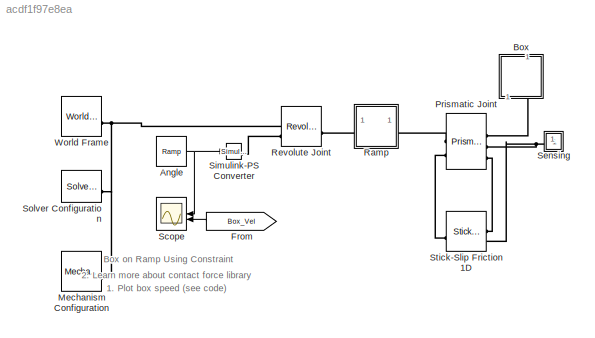
MODEL slx_acdf1f97e8ea
KIND model
CONFIG AbsTol = 1e-4
CONFIG EnableMultiTasking = on
CONFIG FixedStep = auto
CONFIG MaxStep = 1e-2
CONFIG MinStep = auto
CONFIG RelTol = 1e-3
CONFIG SampleTimeConstraint = Unconstrained
CONFIG SolverName = ode23t
CONFIG StartFcn = tic;
CONFIG StartTime = 0.0
CONFIG StopFcn = Elapsed_Sim_Time = toc;\ndisp(['Elapsed Sim Time = ' num2str(Elapsed_Sim_Time)]);
CONFIG StopTime = 10
BLOCK [Reference] Angle  REF=simulink/Sources/Ramp
  SourceBlock = simulink/Sources/Ramp
  SourceType = Ramp
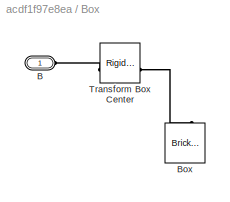
BLOCK [SubSystem] Box
  NameLocation = right
  Tag = CustomStyle
BLOCK [PMIOPort] Box/B
  Side = Left
BLOCK [Reference] Box/Box  REF=sm_lib/Body Elements/Brick Solid
  NameLocation = right
  SourceBlock = sm_lib/Body Elements/Brick Solid
  SourceType = Brick Solid
BLOCK [Reference] Box/Transform Box Center  REF=sm_lib/Frames and
Transforms/Rigid
Transform
  SourceBlock = sm_lib/Frames and\nTransforms/Rigid\nTransform
  SourceType = Rigid\nTransform
BLOCK [From] From
  GotoTag = Box_Vel
  NameLocation = top
  TagVisibility = global
BLOCK [Reference] Mechanism Configuration  REF=sm_lib/Utilities/Mechanism
Configuration
  SourceBlock = sm_lib/Utilities/Mechanism\nConfiguration
  SourceType = Mechanism\nConfiguration
BLOCK [Reference] Prismatic Joint  REF=sm_lib/Joints/Prismatic
Joint
  SourceBlock = sm_lib/Joints/Prismatic\nJoint
  SourceType = Prismatic\nJoint
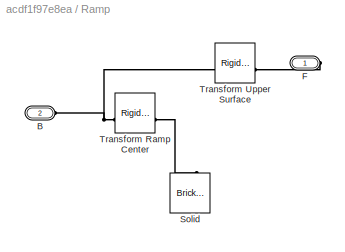
BLOCK [SubSystem] Ramp
  Tag = CustomStyle
BLOCK [PMIOPort] Ramp/B
  Port = 2
  Side = Left
BLOCK [PMIOPort] Ramp/F
  Side = Right
BLOCK [Reference] Ramp/Solid  REF=sm_lib/Body Elements/Brick Solid
  NameLocation = right
  SourceBlock = sm_lib/Body Elements/Brick Solid
  SourceType = Brick Solid
BLOCK [Reference] Ramp/Transform Ramp Center  REF=sm_lib/Frames and
Transforms/Rigid
Transform
  SourceBlock = sm_lib/Frames and\nTransforms/Rigid\nTransform
  SourceType = Rigid\nTransform
BLOCK [Reference] Ramp/Transform Upper Surface  REF=sm_lib/Frames and
Transforms/Rigid
Transform
  SourceBlock = sm_lib/Frames and\nTransforms/Rigid\nTransform
  SourceType = Rigid\nTransform
BLOCK [Reference] Revolute Joint  REF=sm_lib/Joints/Revolute Joint
  SourceBlock = sm_lib/Joints/Revolute Joint
  SourceType = Revolute Joint
BLOCK [Scope] Scope
  Floating = off
  NumInputPorts = 2
  ScopeSpecificationString = Simulink.scopes.TimeScopeBlockCfg('CurrentConfiguration', extmgr.ConfigurationSet(extmgr.Configuration('Core','General UI',true,'FigureColor',[0.501960784313725 0.501960784313725 0.501960784313725]),extmgr.Configuration('Core','Source UI',true),extmgr.Configuration('Sources','WiredSimulink',true,'DataLoggingSaveFormat','StructureWithTime','DataLoggingDecimation','1'),extmgr.Configuration('Visuals'...<+3732ch>
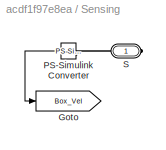
BLOCK [SubSystem] Sensing
  NameLocation = top
BLOCK [Goto] Sensing/Goto
  GotoTag = Box_Vel
  TagVisibility = global
BLOCK [Reference] Sensing/PS-Simulink Converter  REF=nesl_utility/PS-Simulink
Converter
  NameLocation = top
  SourceBlock = nesl_utility/PS-Simulink\nConverter
  SourceType = PS-Simulink\nConverter
BLOCK [PMIOPort] Sensing/S
  Side = Right
BLOCK [Reference] Simulink-PS Converter  REF=nesl_utility/Simulink-PS
Converter
  SourceBlock = nesl_utility/Simulink-PS\nConverter
  SourceType = Simulink-PS\nConverter
BLOCK [Reference] Solver Configuration  REF=nesl_utility/Solver
Configuration
  SourceBlock = nesl_utility/Solver\nConfiguration
  SourceType = Solver\nConfiguration
BLOCK [Reference] Stick-Slip Friction 1D  REF=Contact_Forces_Lib/Friction Utilities/Stick-Slip
Friction 1D
  SourceBlock = Contact_Forces_Lib/Friction Utilities/Stick-Slip\nFriction 1D
  SourceProductName = Simscape Multibody Contact Forces Library
  SourceType = Stick-Slip Friction
BLOCK [Reference] World Frame  REF=sm_lib/Frames and
Transforms/World Frame
  SourceBlock = sm_lib/Frames and\nTransforms/World Frame
  SourceType = World Frame
ANNOTATION (root): 1. Plot box speed ( see code ) 2. Learn more about contact force library
ANNOTATION (root): Box on Ramp Using Constraint
NET Angle:1 -> Scope:1, Simulink-PS Converter:1
LINE From:1 -> Scope:2
LINE Sensing/PS-Simulink Converter:1 -> Sensing/Goto:1
PLINE Box/B:RConn1 -- Box/Transform Box Center:LConn1
PLINE Box/Box:RConn1 -- Box/Transform Box Center:RConn1
PLINE Box:LConn1 -- Prismatic Joint:RConn1
PNET net1: Mechanism Configuration:RConn1 -- Revolute Joint:LConn1 -- Solver Configuration:RConn1 -- World Frame:RConn1
PLINE Prismatic Joint:LConn1 -- Ramp:RConn1
PLINE Prismatic Joint:LConn2 -- Stick-Slip Friction 1D:RConn1
PNET net2: Prismatic Joint:RConn2 -- Sensing:RConn1 -- Stick-Slip Friction 1D:LConn2
PLINE Prismatic Joint:RConn3 -- Stick-Slip Friction 1D:LConn1
PNET net3: Ramp/B:RConn1 -- Ramp/Transform Ramp Center:LConn1 -- Ramp/Transform Upper Surface:LConn1
PLINE Ramp/F:RConn1 -- Ramp/Transform Upper Surface:RConn1
PLINE Ramp/Solid:RConn1 -- Ramp/Transform Ramp Center:RConn1
PLINE Ramp:LConn1 -- Revolute Joint:RConn1
PLINE Revolute Joint:LConn2 -- Simulink-PS Converter:RConn1
PLINE Sensing/PS-Simulink Converter:LConn1 -- Sensing/S:RConn1
note: NET lines group one-source signal fan-out (src -> all destinations, sorted); 1:1 wires keep LINE; PNET lines group multi-terminal physical nets as a canonical sorted terminal list (undirected conserving connections); 2-terminal nets keep the pairwise PLINE form
